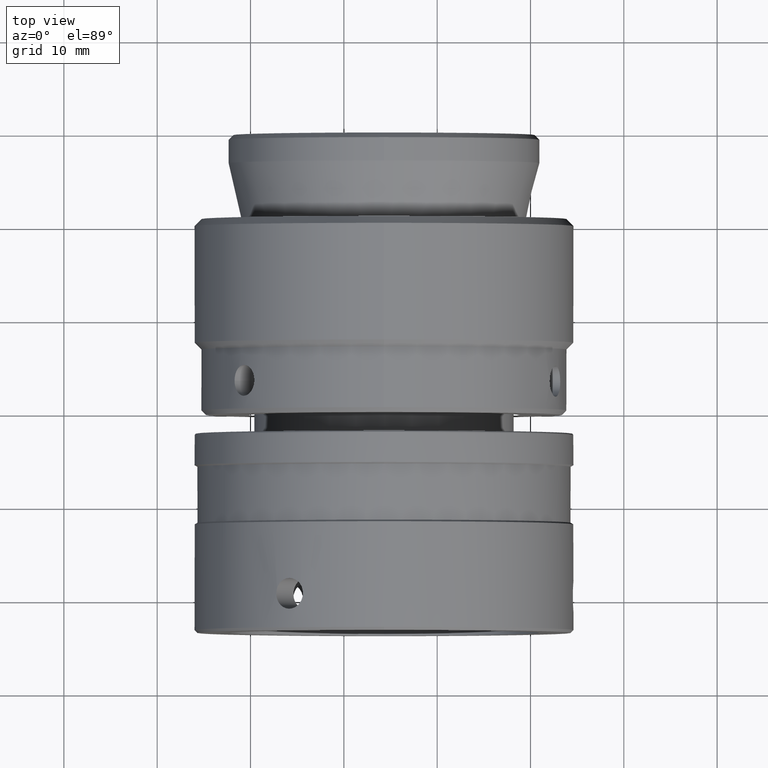
[diagram: clean part render]
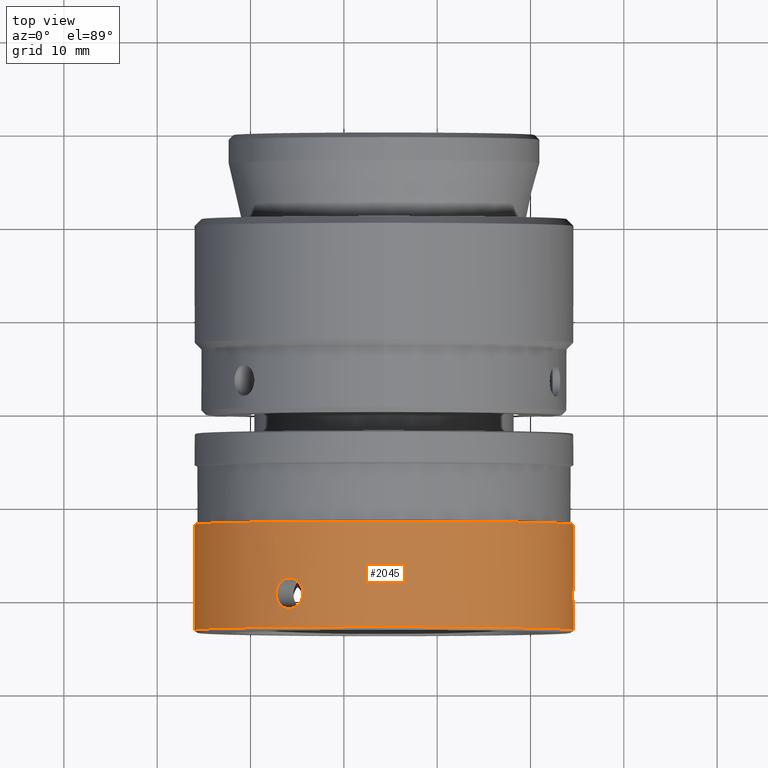
[diagram: same view with one face highlighted and labeled with its STEP entity id]
A machine part, top view. The second image highlights one B-rep face of the part: STEP entity #2045.
In plain terms, the highlighted cylindrical surface (bore or boss wall) has radius 20.3 mm, axis along (-0, -1, -0).
Its self-contained STEP definition (entity closure, byte-faithful):
#5 = CARTESIAN_POINT ( 'NONE',  ( 34.53959013123211719, -20.09734801905249668, -1.597367501993301131 ) ) ;
#19 = EDGE_CURVE ( 'NONE', #1089, #1089, #574, .T. ) ;
#25 = CARTESIAN_POINT ( 'NONE',  ( 34.58963434094529532, -18.18657813408007939, -0.7301581699190331509 ) ) ;
#40 = CARTESIAN_POINT ( 'NONE',  ( 2.792648229661371939, -20.10270659822652206, 16.72183246291338321 ) ) ;
#48 = CARTESIAN_POINT ( 'NONE',  ( 2.757165628646293776, -19.67017350157757605, 16.69714670067579121 ) ) ;
#51 = CARTESIAN_POINT ( 'NONE',  ( 3.784430490369552036, -21.26748487709287616, 17.36291786291339179 ) ) ;
#52 = CARTESIAN_POINT ( 'NONE',  ( 14.30252365930601144, -11.98752377067730990, -6.938893903907228378E-15 ) ) ;
#66 = CARTESIAN_POINT ( 'NONE',  ( 2.800630263086958394, -20.09735103836435854, -16.72713037658215995 ) ) ;
#92 = CARTESIAN_POINT ( 'NONE',  ( 3.095217989095229605, -20.76085643118824109, -16.92607767618005710 ) ) ;
#105 = CARTESIAN_POINT ( 'NONE',  ( 3.966038401990917173, -18.03079732813744229, -17.47164197151041165 ) ) ;
#122 = VERTEX_POINT ( 'NONE', #2229 ) ;
#130 = CARTESIAN_POINT ( 'NONE',  ( 5.035682943879745466, -18.35754391878916536, 18.06166297526687003 ) ) ;
#142 = CARTESIAN_POINT ( 'NONE',  ( 4.524842290668694034, -21.26748487709287616, -17.79039481512728926 ) ) ;
#144 = CARTESIAN_POINT ( 'NONE',  ( 34.56458118225366150, -20.76075917623197142, 1.242973374356500793 ) ) ;
#153 = CARTESIAN_POINT ( 'NONE',  ( 5.416881155424914773, -20.49884669652958280, -18.25209432107644503 ) ) ;
#154 = CARTESIAN_POINT ( 'NONE',  ( 5.463767471261517628, -20.40193007814751169, 18.27479448619934388 ) ) ;
#155 = CARTESIAN_POINT ( 'NONE',  ( 34.54833802731667447, -18.93841692500765461, 1.482809846396323961 ) ) ;
#179 = CARTESIAN_POINT ( 'NONE',  ( 4.876821706006805535, -21.10214964006122784, -17.97926997825687678 ) ) ;
#180 = CARTESIAN_POINT ( 'NONE',  ( 2.800629587436987755, -19.24299898410265186, 16.72712991176561914 ) ) ;
#192 = EDGE_LOOP ( 'NONE', ( #872 ) ) ;
#223 = VERTEX_POINT ( 'NONE', #48 ) ;
#226 = CARTESIAN_POINT ( 'NONE',  ( 3.224087849919934357, -20.91466551246491434, 17.01070891773688487 ) ) ;
#228 = EDGE_CURVE ( 'NONE', #223, #223, #2146, .T. ) ;
#238 = CARTESIAN_POINT ( 'NONE',  ( 34.60165208371500256, -18.03079729674572818, -0.2158375177202946082 ) ) ;
#247 = CARTESIAN_POINT ( 'NONE',  ( 14.30252365930601144, -23.31017350157762280, -20.30000000000019256 ) ) ;
#254 = CARTESIAN_POINT ( 'NONE',  ( 2.895671117080344192, -18.93790905422123316, -16.79212444573188634 ) ) ;
#266 = CARTESIAN_POINT ( 'NONE',  ( 2.757165835403880383, -19.77922139910255694, -16.69714684363979273 ) ) ;
#281 = CARTESIAN_POINT ( 'NONE',  ( 5.538609642626663998, -19.13819949768610584, -18.31080379350496656 ) ) ;
#320 = CARTESIAN_POINT ( 'NONE',  ( 34.59886394775237051, -21.27661905450565172, -0.4335990258747599579 ) ) ;
#333 = CARTESIAN_POINT ( 'NONE',  ( 34.53899301690962886, -20.10270360130336798, 1.606929128136012741 ) ) ;
#343 = CARTESIAN_POINT ( 'NONE',  ( 14.30252365930601144, -23.31017350157762991, -6.938893903907228378E-15 ) ) ;
#344 = CARTESIAN_POINT ( 'NONE',  ( 2.757165628646292888, -19.67017350157757605, 16.69714670067579121 ) ) ;
#345 = CARTESIAN_POINT ( 'NONE',  ( 34.55203193409016649, -18.84367050486786610, 1.432136116276117255 ) ) ;
#356 = CARTESIAN_POINT ( 'NONE',  ( 5.463542493778352771, -20.40244035811720380, -18.27468577804756222 ) ) ;
#357 = CARTESIAN_POINT ( 'NONE',  ( 4.876822671058823389, -18.23819798030104522, 17.97927048457095367 ) ) ;
#367 = CARTESIAN_POINT ( 'NONE',  ( 4.060294566730644483, -21.32024809393912790, 17.52707420626096635 ) ) ;
#368 = CARTESIAN_POINT ( 'NONE',  ( 34.60165208111799018, -21.30954967501771335, 0.2158378329231786519 ) ) ;
#375 = CARTESIAN_POINT ( 'NONE',  ( 3.444870093286346080, -21.10214964006123850, 17.15253232918618309 ) ) ;
#376 = CARTESIAN_POINT ( 'NONE',  ( 34.59886395867164310, -18.06372782249720288, 0.4335984042315987330 ) ) ;
#379 = ORIENTED_EDGE ( 'NONE', *, *, #1132, .T. ) ;
#403 = CARTESIAN_POINT ( 'NONE',  ( 3.526632794555651707, -21.15376886907507981, 17.20407413472668168 ) ) ;
#404 = CARTESIAN_POINT ( 'NONE',  ( 34.53535588813665669, -19.45208488682599324, -1.650000000000000799 ) ) ;
#479 = CARTESIAN_POINT ( 'NONE',  ( 4.244746688956794856, -21.32024809393912079, -17.63356768868084501 ) ) ;
#491 = CARTESIAN_POINT ( 'NONE',  ( 2.937502222808382690, -18.84367265727424723, 16.82051981861292944 ) ) ;
#492 = CARTESIAN_POINT ( 'NONE',  ( 34.56458966564899526, -20.76085490767479058, -1.242773931439327795 ) ) ;
#495 = CARTESIAN_POINT ( 'NONE',  ( 14.30252365930601144, -11.98752377067730990, -20.30000000000019256 ) ) ;
#501 = FACE_BOUND ( 'NONE', #192, .T. ) ;
#503 = CARTESIAN_POINT ( 'NONE',  ( 34.53623686680817428, -19.45391254156499983, 1.639296242207998189 ) ) ;
#514 = CYLINDRICAL_SURFACE ( 'NONE', #819, 20.30000000000018545 ) ;
#515 = CARTESIAN_POINT ( 'NONE',  ( 5.310306037458311756, -20.67598941606458141, 18.19982476474500999 ) ) ;
#516 = CARTESIAN_POINT ( 'NONE',  ( 34.53535588813664248, -19.77921780895337633, -1.649999999999998579 ) ) ;
#525 = CARTESIAN_POINT ( 'NONE',  ( 5.615049461135177111, -19.67017350157757605, -18.34714670067593545 ) ) ;
#526 = CARTESIAN_POINT ( 'NONE',  ( 4.524842820186637304, -18.07286227747199447, 17.79039510701360172 ) ) ;
#527 = CARTESIAN_POINT ( 'NONE',  ( 34.60251143579905175, -21.32002311536269445, -0.2164358445107648909 ) ) ;
#538 = CARTESIAN_POINT ( 'NONE',  ( 34.54210191653344708, -20.20214750546904625, -1.565629721725465995 ) ) ;
#553 = CARTESIAN_POINT ( 'NONE',  ( 3.095049530280182815, -20.76076072850320386, 16.92597062250426987 ) ) ;
#555 = CARTESIAN_POINT ( 'NONE',  ( 34.59829819687986685, -18.07286212606227238, -0.4274769522137494837 ) ) ;
#574 = CIRCLE ( 'NONE', #2283, 20.30000000000018545 ) ;
#581 = ORIENTED_EDGE ( 'NONE', *, *, #19, .T. ) ;
#588 = CARTESIAN_POINT ( 'NONE',  ( 34.54835637203723309, -18.93790664503795540, -1.482560656104462415 ) ) ;
#590 = CARTESIAN_POINT ( 'NONE',  ( 3.696570505848341348, -18.10399422037849959, -17.30935436387926885 ) ) ;
#611 = CARTESIAN_POINT ( 'NONE',  ( 5.615049461135177111, -19.67017350157757605, -18.34714670067593545 ) ) ;
#632 = CARTESIAN_POINT ( 'NONE',  ( 3.038058663490457612, -18.66293075382198197, -16.88802588125140858 ) ) ;
#645 = CARTESIAN_POINT ( 'NONE',  ( 5.035681837863437593, -20.98280402307606352, -18.06166240742641449 ) ) ;
#658 = CARTESIAN_POINT ( 'NONE',  ( 4.339880220537216005, -21.30954970640942392, -17.68747964908122228 ) ) ;
#659 = CARTESIAN_POINT ( 'NONE',  ( 5.247941416252503544, -18.57958782692317712, 18.16894323499246511 ) ) ;
#670 = CARTESIAN_POINT ( 'NONE',  ( 3.095216860346918342, -18.57949209548036507, 16.92607692893041715 ) ) ;
#671 = CARTESIAN_POINT ( 'NONE',  ( 34.55212217633016536, -20.49884453928180861, 1.430856284573932768 ) ) ;
#680 = FACE_BOUND ( 'NONE', #1332, .T. ) ;
#694 = CARTESIAN_POINT ( 'NONE',  ( 5.538608758541451849, -20.20215034497069695, 18.31080337059719199 ) ) ;
#704 = CARTESIAN_POINT ( 'NONE',  ( 34.55203184533324645, -20.49667434588090842, -1.432137369255094939 ) ) ;
#718 = VERTEX_POINT ( 'NONE', #1558 ) ;
#743 = CARTESIAN_POINT ( 'NONE',  ( 2.938567556924745361, -20.49884669652958991, 16.82123929784605210 ) ) ;
#744 = CARTESIAN_POINT ( 'NONE',  ( 34.56458126661674157, -18.57958627465194823, -1.242971996741006668 ) ) ;
#756 = CARTESIAN_POINT ( 'NONE',  ( 3.294086090617706741, -20.98280402307607062, 17.05615163393457223 ) ) ;
#768 = CARTESIAN_POINT ( 'NONE',  ( 2.826860227049456054, -20.20215034497069695, -16.74517462596574191 ) ) ;
#794 = DIRECTION ( 'NONE',  ( 0.000000000000000000, 0.000000000000000000, -1.000000000000000000 ) ) ;
#814 = CARTESIAN_POINT ( 'NONE',  ( 4.529861286546720045, -18.06372794864949682, -17.79394580658559022 ) ) ;
#819 = AXIS2_PLACEMENT_3D ( 'NONE', #343, #1353, #1940 ) ;
#828 = CARTESIAN_POINT ( 'NONE',  ( 4.791304722318488807, -18.18657861221977967, 17.93423277200265886 ) ) ;
#842 = CARTESIAN_POINT ( 'NONE',  ( 34.56021559014657640, -20.67741624933317013, 1.311299905791306175 ) ) ;
#853 = CARTESIAN_POINT ( 'NONE',  ( 5.615049461135177111, -19.88826211632917662, -18.34714670067592834 ) ) ;
#867 = CARTESIAN_POINT ( 'NONE',  ( 3.037120755720884357, -18.66435933086316368, 16.88740052939754221 ) ) ;
#872 = ORIENTED_EDGE ( 'NONE', *, *, #228, .T. ) ;
#877 = CARTESIAN_POINT ( 'NONE',  ( 3.441231440960899945, -18.22836629389099627, 17.15114481798126178 ) ) ;
#937 = CARTESIAN_POINT ( 'NONE',  ( 34.57780304943698013, -18.35754298007911345, -1.005510773491693932 ) ) ;
#939 = CARTESIAN_POINT ( 'NONE',  ( 2.757165215142573178, -19.45208907941796284, -16.69714641475579597 ) ) ;
#951 = CARTESIAN_POINT ( 'NONE',  ( 2.895465479339901282, -20.40193007814750814, -16.79198463980316802 ) ) ;
#967 = EDGE_LOOP ( 'NONE', ( #581 ) ) ;
#977 = CARTESIAN_POINT ( 'NONE',  ( 4.879842652121030078, -18.22836629389099627, -17.98172738800378312 ) ) ;
#987 = EDGE_CURVE ( 'NONE', #122, #122, #1055, .T. ) ;
#989 = CARTESIAN_POINT ( 'NONE',  ( 5.605339660868875917, -19.45391593827904941, -18.34255796836714936 ) ) ;
#1000 = CARTESIAN_POINT ( 'NONE',  ( 5.110035504856476507, -20.91466551246493211, -18.09956130399205776 ) ) ;
#1015 = CARTESIAN_POINT ( 'NONE',  ( 2.895464498817756027, -18.93841929457483531, 16.79198397346498695 ) ) ;
#1028 = CARTESIAN_POINT ( 'NONE',  ( 5.615049915501026945, -19.45208907941794862, 18.34714691582064816 ) ) ;
#1029 = CARTESIAN_POINT ( 'NONE',  ( 34.57344755338319686, -20.91466438944734563, 1.088853687659495417 ) ) ;
#1041 = CARTESIAN_POINT ( 'NONE',  ( 34.56014306092418309, -18.66435758709057779, 1.312423485494396358 ) ) ;
#1051 = CARTESIAN_POINT ( 'NONE',  ( 4.615158982767911588, -21.23635302240799305, -17.83970168993709748 ) ) ;
#1055 = B_SPLINE_CURVE_WITH_KNOTS ( 'NONE', 3,
 ( #1593, #516, #2289, #5, #538, #1242, #704, #2082, #492, #1198, #1567, #320, #527, #1905, #368, #1919, #1222, #2263, #1735, #1233, #1029, #144, #842, #671, #1416, #333, #1380, #1747, #503, #1210, #1932, #155, #345, #1041, #1759, #1962, #1612, #376, #2163, #2142, #238, #555, #1292, #25, #1629, #937, #2152, #744, #1454, #1807, #588, #1282, #404, #1426 ),
 .UNSPECIFIED., .T., .F.,
 ( 4, 2, 2, 2, 2, 2, 2, 2, 2, 2, 2, 2, 2, 2, 2, 2, 2, 2, 2, 2, 2, 2, 2, 2, 2, 2, 4 ),
 ( 0.000000000000000000, 0.0003224793417055187798, 0.0006449586834110375595, 0.0009674380251165564477, 0.001289917366822075119, 0.001934876050233112895, 0.002579834733644150238, 0.002902314075349669235, 0.003224793417055188231, 0.003547272758760706794, 0.003869752100466225791, 0.004192231442171744787, 0.004514710783877262483, 0.005159669467288300476, 0.005482148808993819906, 0.005804628150699338469, 0.006127107492404857900, 0.006449586834110376463, 0.007094545517521414456, 0.007739504200932453316, 0.008061983542637972747, 0.008384462884343491310, 0.008706942226049009873, 0.009029421567754528435, 0.009351900909460046998, 0.009674380251165565561, 0.01031933893457660616 ),
 .UNSPECIFIED. ) ;
#1057 = CIRCLE ( 'NONE', #1954, 20.30000000000018545 ) ;
#1062 = CARTESIAN_POINT ( 'NONE',  ( 2.757165628646292888, -19.67017350157757605, 16.69714670067579121 ) ) ;
#1089 = VERTEX_POINT ( 'NONE', #247 ) ;
#1103 = CARTESIAN_POINT ( 'NONE',  ( 4.879841675038970372, -21.11198129857366013, 17.98172687333379471 ) ) ;
#1118 = CARTESIAN_POINT ( 'NONE',  ( 3.095048379411933226, -18.57958782692318067, -16.92596986063610842 ) ) ;
#1131 = CARTESIAN_POINT ( 'NONE',  ( 5.310307248757581533, -18.66435933086317789, -18.19982536307052357 ) ) ;
#1132 = EDGE_CURVE ( 'NONE', #2254, #2254, #1057, .T. ) ;
#1143 = CARTESIAN_POINT ( 'NONE',  ( 5.463768538588370305, -18.93841929457483886, -18.27479500218735353 ) ) ;
#1157 = CARTESIAN_POINT ( 'NONE',  ( 5.615049461135177111, -19.56112919420177576, -18.34714670067593545 ) ) ;
#1184 = FACE_OUTER_BOUND ( 'NONE', #2019, .T. ) ;
#1195 = CARTESIAN_POINT ( 'NONE',  ( 3.286285870832033496, -20.98905827634982302, -17.05156088251900570 ) ) ;
#1198 = CARTESIAN_POINT ( 'NONE',  ( 34.57772738913877930, -20.98905735661222849, -1.014562602314093009 ) ) ;
#1209 = CARTESIAN_POINT ( 'NONE',  ( 3.965090831423543793, -18.02032388779245409, 17.47208718870112776 ) ) ;
#1210 = CARTESIAN_POINT ( 'NONE',  ( 34.53959019595001934, -19.24299596479079355, 1.597366684455264307 ) ) ;
#1221 = CARTESIAN_POINT ( 'NONE',  ( 2.757165628646292888, -19.56112919420177576, 16.69714670067579121 ) ) ;
#1222 = CARTESIAN_POINT ( 'NONE',  ( 34.59584083826129586, -21.23635278277665961, 0.5303476803025587438 ) ) ;
#1231 = FACE_BOUND ( 'NONE', #2158, .T. ) ;
#1232 = CARTESIAN_POINT ( 'NONE',  ( 5.043557655104629944, -20.98905827634981591, 18.06612222020809710 ) ) ;
#1233 = CARTESIAN_POINT ( 'NONE',  ( 34.57780298819308484, -20.98280308436597608, 1.005512015250417557 ) ) ;
#1242 = CARTESIAN_POINT ( 'NONE',  ( 34.54833794051197771, -20.40192770858031679, -1.482811028722229363 ) ) ;
#1259 = CARTESIAN_POINT ( 'NONE',  ( 3.038059777560149666, -20.67741797215898103, 16.88802662447840675 ) ) ;
#1271 = CARTESIAN_POINT ( 'NONE',  ( 2.757165628646292888, -19.88826211632917662, 16.69714670067578766 ) ) ;
#1281 = CARTESIAN_POINT ( 'NONE',  ( 4.339968440614740075, -21.32002311557960184, 17.68852287730119244 ) ) ;
#1282 = CARTESIAN_POINT ( 'NONE',  ( 34.53899308483863706, -19.23764040492863003, -1.606928285009792123 ) ) ;
#1292 = CARTESIAN_POINT ( 'NONE',  ( 34.59584085699675882, -18.10399398074717325, -0.5303469393623490014 ) ) ;
#1294 = CARTESIAN_POINT ( 'NONE',  ( 3.294085045845270621, -18.35754391878916181, -17.05615096001659836 ) ) ;
#1332 = EDGE_LOOP ( 'NONE', ( #2043 ) ) ;
#1340 = CARTESIAN_POINT ( 'NONE',  ( 2.792647533457380149, -19.23764340185180188, -16.72183198252217906 ) ) ;
#1353 = DIRECTION ( 'NONE',  ( -0.000000000000000000, -1.000000000000000000, -0.000000000000000000 ) ) ;
#1367 = CARTESIAN_POINT ( 'NONE',  ( 5.416882292399503029, -18.84150246387334704, 18.25209487446552359 ) ) ;
#1379 = CARTESIAN_POINT ( 'NONE',  ( 4.339880494809190914, -18.03079732813742808, 17.68747980443344048 ) ) ;
#1380 = CARTESIAN_POINT ( 'NONE',  ( 34.53535584727450214, -19.88825792373721413, 1.650000501064992076 ) ) ;
#1392 = CARTESIAN_POINT ( 'NONE',  ( 2.765994487530012425, -19.45391593827904231, 16.70326126821768398 ) ) ;
#1405 = CARTESIAN_POINT ( 'NONE',  ( 5.418035780286159842, -20.49667649828729665, 18.25265663824429296 ) ) ;
#1415 = CARTESIAN_POINT ( 'NONE',  ( 4.615159633808447737, -18.10399422037849604, 17.83970204418168493 ) ) ;
#1416 = CARTESIAN_POINT ( 'NONE',  ( 34.54835628393231417, -20.40243794893391538, 1.482561855924764194 ) ) ;
#1426 = CARTESIAN_POINT ( 'NONE',  ( 34.53535588813664958, -19.67017350157757960, -1.649999999999999245 ) ) ;
#1435 = CARTESIAN_POINT ( 'NONE',  ( 3.696571138153433633, -21.23635302240798239, 17.30935475057459527 ) ) ;
#1436 = DIRECTION ( 'NONE',  ( -0.000000000000000000, -1.000000000000000000, -0.000000000000000000 ) ) ;
#1454 = CARTESIAN_POINT ( 'NONE',  ( 34.56021567676521045, -18.66292903099617462, -1.311298569364878874 ) ) ;
#1490 = CARTESIAN_POINT ( 'NONE',  ( 2.938566509188436093, -18.84150246387335059, -16.82123858989173470 ) ) ;
#1515 = CARTESIAN_POINT ( 'NONE',  ( 3.526631949862117477, -18.18657861221977967, -17.20407360638821004 ) ) ;
#1543 = B_SPLINE_CURVE_WITH_KNOTS ( 'NONE', 3,
 ( #611, #1157, #989, #1866, #281, #1143, #1843, #1131, #1706, #2188, #977, #814, #2028, #1694, #105, #1682, #590, #1515, #2223, #1294, #2003, #1118, #632, #1490, #254, #1340, #939, #266, #1830, #66, #768, #951, #1669, #2200, #92, #1195, #2287, #2067, #2114, #479, #658, #142, #1051, #1757, #179, #645, #1000, #2090, #1718, #153, #356, #2261, #853, #525 ),
 .UNSPECIFIED., .T., .F.,
 ( 4, 2, 2, 2, 2, 2, 2, 2, 2, 2, 2, 2, 2, 2, 2, 2, 2, 2, 2, 2, 2, 2, 2, 2, 2, 2, 4 ),
 ( 0.000000000000000000, 0.0003224793417055200266, 0.0006449586834110400532, 0.0009674380251165600256, 0.001289917366822080106, 0.001934876050233120051, 0.002579834733644160213, 0.002902314075349678342, 0.003224793417055196038, 0.003547272758760713733, 0.003869752100466231429, 0.004192231442171749124, 0.004514710783877266820, 0.005159669467288310885, 0.005482148808993832917, 0.005804628150699355817, 0.006127107492404876982, 0.006449586834110399881, 0.007094545517521437007, 0.007739504200932473266, 0.008061983542637991829, 0.008384462884343510392, 0.008706942226049028954, 0.009029421567754549252, 0.009351900909460066080, 0.009674380251165586378, 0.01031933893457662177 ),
 .UNSPECIFIED. ) ;
#1558 = CARTESIAN_POINT ( 'NONE',  ( 5.615049461135177111, -19.67017350157757605, -18.34714670067593545 ) ) ;
#1567 = CARTESIAN_POINT ( 'NONE',  ( 34.58649688483617268, -21.11198070926415937, -0.8305825700223781194 ) ) ;
#1579 = CARTESIAN_POINT ( 'NONE',  ( 5.110036666784835369, -18.42568261370781002, 18.09956189428151418 ) ) ;
#1593 = CARTESIAN_POINT ( 'NONE',  ( 34.53535588813664958, -19.67017350157757960, -1.649999999999999245 ) ) ;
#1612 = CARTESIAN_POINT ( 'NONE',  ( 34.58649692765992967, -18.22836570458150263, 0.8305814665097664973 ) ) ;
#1623 = ORIENTED_EDGE ( 'NONE', *, *, #987, .T. ) ;
#1628 = CARTESIAN_POINT ( 'NONE',  ( 2.895672112102534168, -20.40244035811720735, 16.79212512194294504 ) ) ;
#1629 = CARTESIAN_POINT ( 'NONE',  ( 34.58587917862497108, -18.23819736309393491, -0.8267376490705377057 ) ) ;
#1669 = CARTESIAN_POINT ( 'NONE',  ( 2.937503263541776821, -20.49667649828730021, -16.82052052196832648 ) ) ;
#1682 = CARTESIAN_POINT ( 'NONE',  ( 3.784429972829600253, -18.07286227747201224, -17.36291755028057793 ) ) ;
#1685 = CARTESIAN_POINT ( 'NONE',  ( 14.30252365930601144, -23.31017350157762280, -6.938893903907228378E-15 ) ) ;
#1694 = CARTESIAN_POINT ( 'NONE',  ( 4.060294431687109018, -18.02009890910758472, -17.52707412830373457 ) ) ;
#1706 = CARTESIAN_POINT ( 'NONE',  ( 5.247764451922195761, -18.57949209548035796, -18.16885086036987929 ) ) ;
#1718 = CARTESIAN_POINT ( 'NONE',  ( 5.309295523592742150, -20.67741797215899169, -18.19932519384343550 ) ) ;
#1719 = CARTESIAN_POINT ( 'NONE',  ( 4.244746823991514262, -18.02009890910757406, 17.63356776665334280 ) ) ;
#1735 = CARTESIAN_POINT ( 'NONE',  ( 34.58587913457980534, -21.10214902285411398, 0.8267387379874154840 ) ) ;
#1746 = CARTESIAN_POINT ( 'NONE',  ( 5.567350518881103660, -20.09735103836435499, 18.32449706103728104 ) ) ;
#1747 = CARTESIAN_POINT ( 'NONE',  ( 34.53535590856827042, -19.56112560405261291, 1.649999749460953957 ) ) ;
#1757 = CARTESIAN_POINT ( 'NONE',  ( 4.791303842417165448, -21.15376886907508336, -17.93423230464586382 ) ) ;
#1759 = CARTESIAN_POINT ( 'NONE',  ( 34.56458974841199705, -18.57949057196691811, 1.242772580290072870 ) ) ;
#1807 = CARTESIAN_POINT ( 'NONE',  ( 34.55212226556843547, -18.84150030662556929, -1.430855023230243939 ) ) ;
#1817 = CARTESIAN_POINT ( 'NONE',  ( 4.529860742728079259, -21.27661918065795277, 17.79394550522023977 ) ) ;
#1828 = DIRECTION ( 'NONE',  ( 0.000000000000000000, 0.000000000000000000, -1.000000000000000000 ) ) ;
#1830 = CARTESIAN_POINT ( 'NONE',  ( 2.765994865474572961, -19.88643446159016293, -16.70326152948171128 ) ) ;
#1843 = CARTESIAN_POINT ( 'NONE',  ( 5.418036909776476229, -18.84367265727425433, -18.25265718786817715 ) ) ;
#1866 = CARTESIAN_POINT ( 'NONE',  ( 5.567351259249008422, -19.24299898410265541, -18.32449741375907237 ) ) ;
#1883 = DIRECTION ( 'NONE',  ( 0.000000000000000000, 1.000000000000000000, 0.000000000000000000 ) ) ;
#1904 = CARTESIAN_POINT ( 'NONE',  ( 2.826859418757994291, -19.13819949768609874, 16.74517407177935624 ) ) ;
#1905 = CARTESIAN_POINT ( 'NONE',  ( 34.60252972223948120, -21.32024809404756738, 0.1064936383497531586 ) ) ;
#1918 = CARTESIAN_POINT ( 'NONE',  ( 5.615049233945948792, -19.77922139910254984, 18.34714659310058948 ) ) ;
#1919 = CARTESIAN_POINT ( 'NONE',  ( 34.59829818490186426, -21.26748472568314696, 0.4274775567331745574 ) ) ;
#1932 = CARTESIAN_POINT ( 'NONE',  ( 34.54210199232718281, -19.13819665818446936, 1.565628744631602620 ) ) ;
#1940 = DIRECTION ( 'NONE',  ( 0.000000000000000000, 0.000000000000000000, -1.000000000000000000 ) ) ;
#1941 = CARTESIAN_POINT ( 'NONE',  ( 5.605339245635339473, -19.88643446159015227, 18.34255777168955248 ) ) ;
#1952 = CARTESIAN_POINT ( 'NONE',  ( 3.966038673665882364, -21.30954970640942037, 17.47164213136077393 ) ) ;
#1954 = AXIS2_PLACEMENT_3D ( 'NONE', #52, #1436, #1828 ) ;
#1961 = EDGE_CURVE ( 'NONE', #718, #718, #1543, .T. ) ;
#1962 = CARTESIAN_POINT ( 'NONE',  ( 34.57772745198145259, -18.35128872680534684, 1.014561337689248388 ) ) ;
#2003 = CARTESIAN_POINT ( 'NONE',  ( 3.224086757750075360, -18.42568261370780647, -17.01070820662216221 ) ) ;
#2019 = EDGE_LOOP ( 'NONE', ( #379 ) ) ;
#2028 = CARTESIAN_POINT ( 'NONE',  ( 4.339968710695503162, -18.02032388779246830, -17.68852303321203223 ) ) ;
#2043 = ORIENTED_EDGE ( 'NONE', *, *, #1961, .T. ) ;
#2045 = ADVANCED_FACE ( 'NONE', ( #2237, #1184, #1231, #680, #501 ), #514, .T. ) ;
#2067 = CARTESIAN_POINT ( 'NONE',  ( 3.778846276518387892, -21.27661918065796343, -17.36034710098878975 ) ) ;
#2081 = CARTESIAN_POINT ( 'NONE',  ( 5.463543576905429688, -18.93790905422123672, 18.27468630165650154 ) ) ;
#2082 = CARTESIAN_POINT ( 'NONE',  ( 34.56014297343964614, -20.67598767229197421, -1.312424833672819480 ) ) ;
#2090 = CARTESIAN_POINT ( 'NONE',  ( 5.247940181021186312, -20.76076072850320031, -18.16894261924543130 ) ) ;
#2091 = CARTESIAN_POINT ( 'NONE',  ( 5.575930427551096358, -19.23764340185179122, 18.32876111065804992 ) ) ;
#2105 = CARTESIAN_POINT ( 'NONE',  ( 3.286284807055900092, -18.35128964654291295, 17.05156019578306470 ) ) ;
#2114 = CARTESIAN_POINT ( 'NONE',  ( 3.965091101486672098, -21.32002311557960894, -17.47208734464252800 ) ) ;
#2115 = CARTESIAN_POINT ( 'NONE',  ( 5.247763240410887597, -20.76085643118824109, 18.16885025646998031 ) ) ;
#2142 = CARTESIAN_POINT ( 'NONE',  ( 34.60252972223067758, -18.02009890921604907, -0.1064934824197319163 ) ) ;
#2146 = B_SPLINE_CURVE_WITH_KNOTS ( 'NONE', 3,
 ( #344, #1221, #1392, #180, #1904, #1015, #491, #867, #670, #2105, #877, #2262, #1209, #1719, #1379, #526, #1415, #828, #357, #130, #1579, #659, #2288, #1367, #2081, #2091, #1028, #1918, #1941, #1746, #694, #154, #1405, #515, #2115, #1232, #1103, #1817, #1281, #367, #1952, #51, #1435, #403, #375, #756, #226, #553, #1259, #743, #1628, #40, #1271, #1062 ),
 .UNSPECIFIED., .T., .F.,
 ( 4, 2, 2, 2, 2, 2, 2, 2, 2, 2, 2, 2, 2, 2, 2, 2, 2, 2, 2, 2, 2, 2, 2, 2, 2, 2, 4 ),
 ( 0.000000000000000000, 0.0003224793417055208940, 0.0006449586834110417879, 0.0009674380251165627361, 0.001289917366822083576, 0.001934876050233120485, 0.002579834733644157611, 0.002902314075349678342, 0.003224793417055199073, 0.003547272758760720238, 0.003869752100466240970, 0.004192231442171762135, 0.004514710783877283300, 0.005159669467288334303, 0.005482148808993855468, 0.005804628150699376633, 0.006127107492404896931, 0.006449586834110418096, 0.007094545517521451752, 0.007739504200932485409, 0.008061983542638002237, 0.008384462884343520800, 0.008706942226049037628, 0.009029421567754556191, 0.009351900909460073019, 0.009674380251165589847, 0.01031933893457663218 ),
 .UNSPECIFIED. ) ;
#2152 = CARTESIAN_POINT ( 'NONE',  ( 34.57344762314168918, -18.42568149069024841, -1.088852386255017235 ) ) ;
#2158 = EDGE_LOOP ( 'NONE', ( #1623 ) ) ;
#2163 = CARTESIAN_POINT ( 'NONE',  ( 34.60251143581667321, -18.02032388757556802, 0.2164355326588158768 ) ) ;
#2188 = CARTESIAN_POINT ( 'NONE',  ( 5.043558781723443296, -18.35128964654293071, -18.06612279809730026 ) ) ;
#2200 = CARTESIAN_POINT ( 'NONE',  ( 3.037121879535602531, -20.67598941606457785, -16.88740127925075996 ) ) ;
#2223 = CARTESIAN_POINT ( 'NONE',  ( 3.444869172279472203, -18.23819798030103456, -17.15253174658368351 ) ) ;
#2229 = CARTESIAN_POINT ( 'NONE',  ( 34.53535588813664248, -19.67017350157757605, -1.649999999999998579 ) ) ;
#2237 = FACE_OUTER_BOUND ( 'NONE', #967, .T. ) ;
#2254 = VERTEX_POINT ( 'NONE', #495 ) ;
#2261 = CARTESIAN_POINT ( 'NONE',  ( 5.575929663418095039, -20.10270659822652561, -18.32876074792332233 ) ) ;
#2262 = CARTESIAN_POINT ( 'NONE',  ( 3.778845743619033470, -18.06372794864948972, 17.36034678071067816 ) ) ;
#2263 = CARTESIAN_POINT ( 'NONE',  ( 34.58963430573749065, -21.15376839093536887, 0.7301591656146040332 ) ) ;
#2283 = AXIS2_PLACEMENT_3D ( 'NONE', #1685, #1883, #794 ) ;
#2287 = CARTESIAN_POINT ( 'NONE',  ( 3.441232375219212436, -21.11198129857366368, -17.15114540682416688 ) ) ;
#2288 = CARTESIAN_POINT ( 'NONE',  ( 5.309296724281066027, -18.66293075382198197, 18.19932578704257864 ) ) ;
#2289 = CARTESIAN_POINT ( 'NONE',  ( 34.53623682951923257, -19.88643106487610979, -1.639296700149317720 ) ) ;